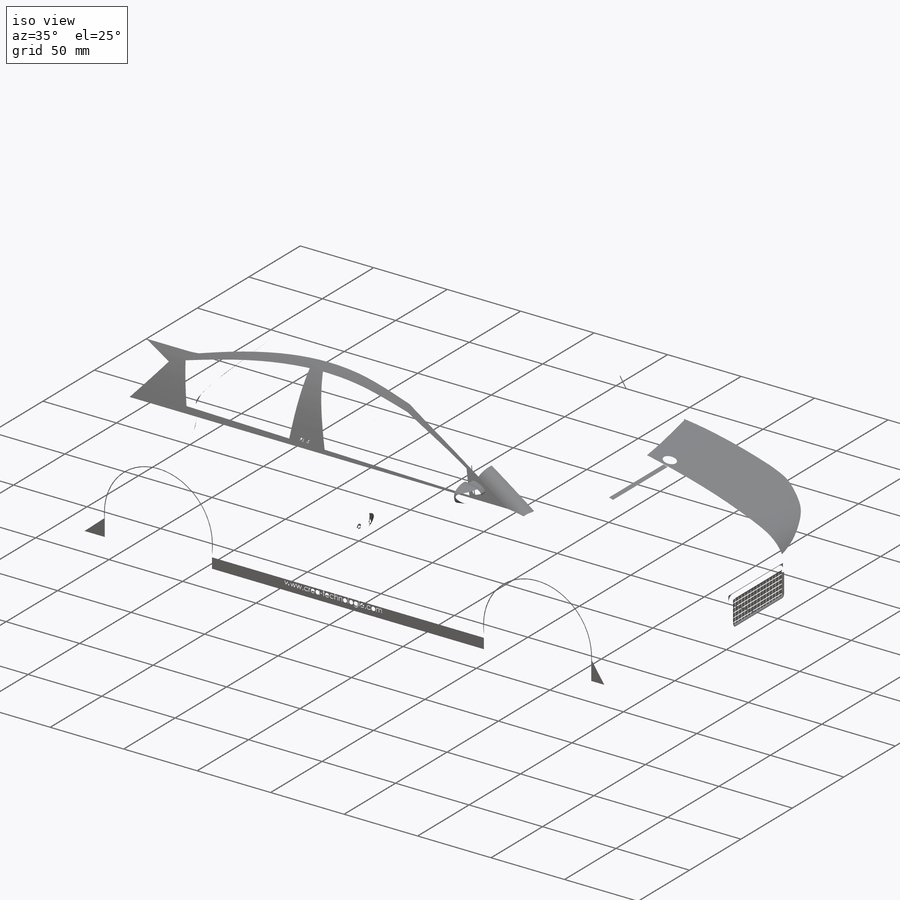
[diagram: iso view]
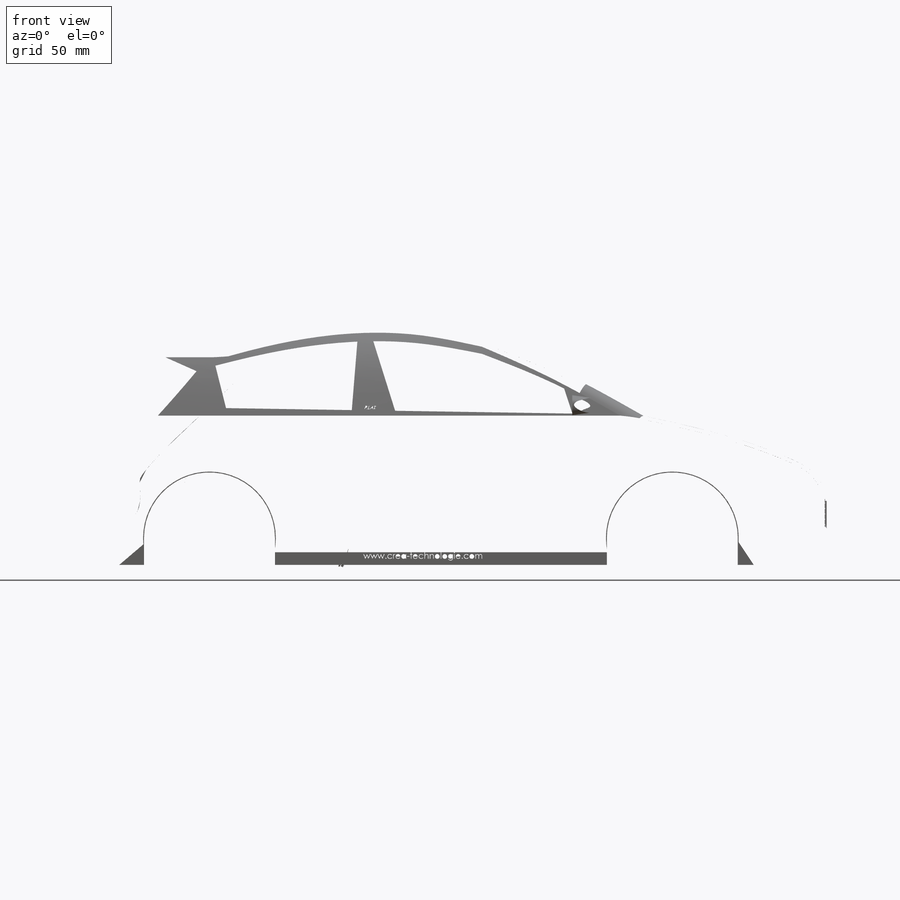
[diagram: front view]
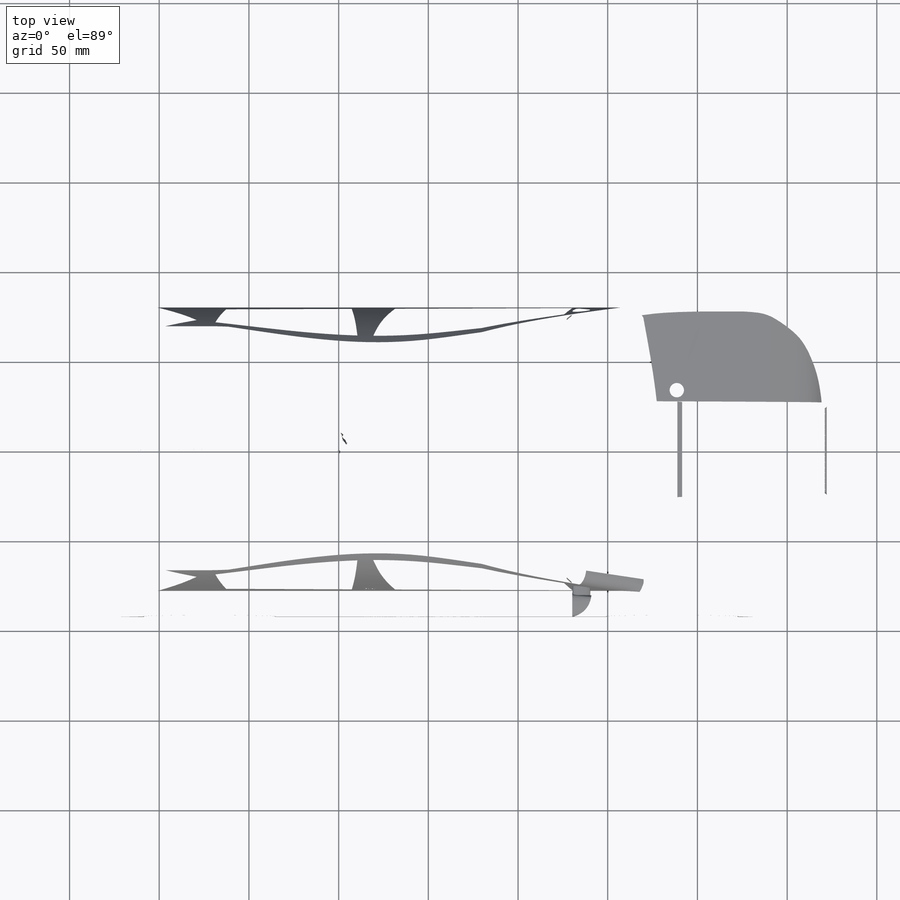
[diagram: top view]
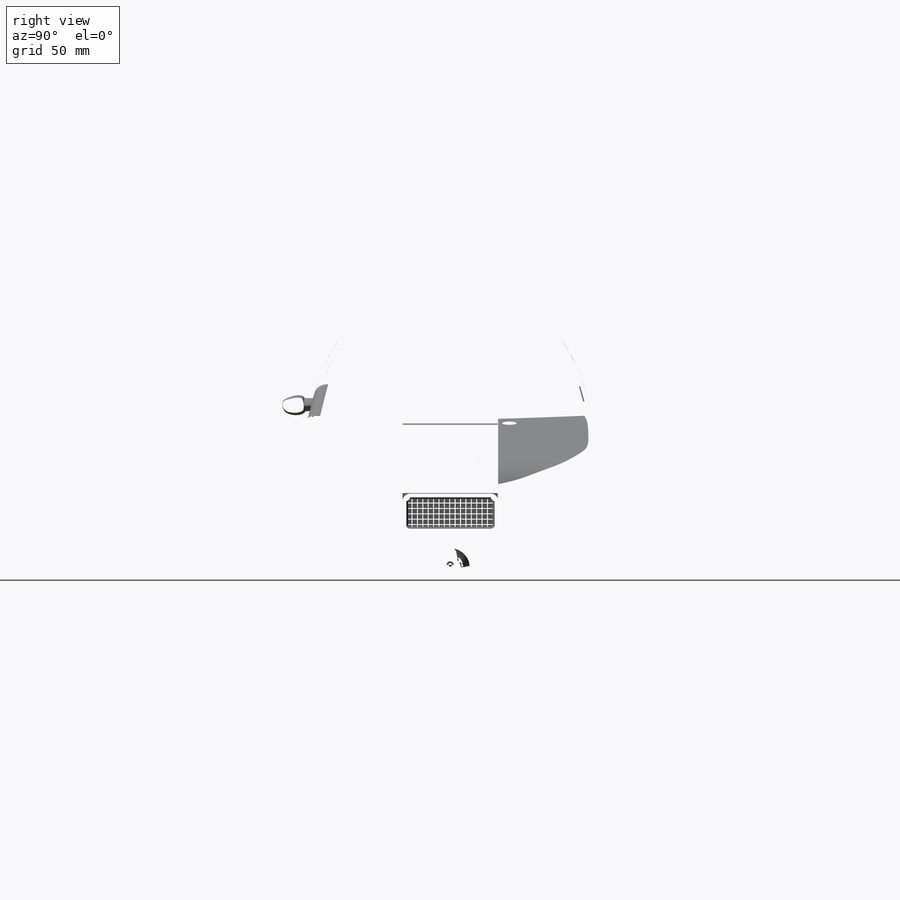
[diagram: right view]
SOLIDWORKS PART (.sldprt)
format: sldprt  version: not decoded by parser v0  size: 6,129,152 bytes
history: native  units: mm
features: sketch x47, fillet x27, extrude x21, cut_extrude x20, plane x12, mirror x5, pattern_linear x2, material x1, shell x1 + 1 further entry (+9 scaffold rows collapsed)
feature tree (146):
  scaffold x9  (default folders/planes/origin — collapsed)
  material  "ABS"
  "Corps de surface"
  plane  "Plane1"
  plane  "Plane2"
  plane  "Plane3"
  sketch  "Esquisse1"  dims[c1.D3=68.0mm c1.D4=68.0mm c1.D5=10.0mm c1.D1=180.0mm c1.D2=18.0mm c1.D6=125.0mm c1.D7=80.0mm c2.D6=8.0mm c2.D7=255.0mm c2.D1=420.0mm c2.D2=330.0mm c2.D3=125.0mm c2.D4=255.0mm]
  extrude  "Base-Extrusion"  Depth=170mm
  sketch  "Esquisse2"  dims[D1=270.75mm D2=83.0mm D3=224.0mm D4=224.0mm]
  cut_extrude  "Enlèv. mat.-Extru.2"  Depth=170mm
  sketch  "Esquisse5"
  cut_extrude  "Enlèv. mat.-Extru.4"  Depth=660mm
  sketch  "Esquisse6"  dims[D4=65.0mm D5=65.0mm D6=90.0mm D7=90.0mm D1=15.0mm D2=85.0mm D3=258.0mm]
  extrude  "Boss.-Extru.3"  Depth=184mm
  fillet  "Congé1"  Radius=8mm
  sketch  "Esquisse8"  dims[c1.D4=65.0mm c1.D5=65.0mm c1.D6=100.0mm c1.D7=100.0mm c1.D1=65.0mm c1.D2=65.0mm c2.D1=70.0mm c2.D2=70.0mm c3.D1=15.0mm c3.D2=90.0mm c3.D3=260.0mm c4.D2=32.0mm c4.D4=85.0mm]
  plane  "Plan1"  Offset=270mm
  sketch  "Esquisse11"  dims[D3=8.0mm D4=8.0mm D7=3.0mm D1=33.0mm D2=33.0mm D5=255.0mm D6=66.5mm D8=55.5mm]
  fillet  "Congé6"  Radius=4mm
  sketch  "Esquisse18"
  extrude  "Extrusion5"  Depth=10mm
  fillet  "Congé8"  Radius=1mm
  sketch  "Esquisse19"  dims[D1=50.0mm D2=50.0mm]
  extrude  "Extrusion6"  Depth=20mm
  fillet  "Congé9"  Radius=8mm
  sketch  "Esquisse20"  dims[D1=2.0mm]
  fillet  "Congé10"  Radius=1mm
  fillet  "Congé11"  Radius=20mm
  sketch  "Esquisse21"  dims[D1=1.0mm]
  cut_extrude  "Enlèv. mat.-Extru.7"  Depth=53mm
  fillet  "Congé14"  Radius=0.25mm
  sketch  "Esquisse22"
  extrude  "Extrusion7"  Depth=63mm
  plane  "Plan2"  Offset=180mm
  sketch  "Esquisse24"
  cut_extrude  "Enlèv. mat.-Extru.9"  Depth=40mm
  fillet  "Congé18"  Radius=1mm
  fillet  "Congé19"  Radius=1mm
  plane  "Plan3"  Offset=95mm
  sketch  "Esquisse25"  dims[D1=20.0mm D2=20.0mm]
  extrude  "Extrusion8"  Depth=38mm
  fillet  "Congé20"  Radius=1mm
  fillet  "Congé21"  Radius=1mm
  plane  "Plan4"  Offset=285mm
  sketch  "Esquisse26"
  cut_extrude  "Enlèv. mat.-Extru.10"  Depth=23mm
  fillet  "Congé22"  Radius=0.5mm
  plane  "Plan5"  Offset=50mm
  plane  "Plan6"  Offset=120mm
  sketch  "Esquisse31"  dims[D1=8.0mm]
  cut_extrude  "Enlèv. mat.-Extru.15"  Depth=68mm
  mirror  "Symétrie1"
  sketch  "Esquisse32"
  extrude  "Extrusion11"  Depth=138mm
  sketch  "Esquisse33"  dims[D1=0.0mm]
  extrude  "Extrusion12"  Depth=75mm
  sketch  "Esquisse34"
  cut_extrude  "Enlèv. mat.-Extru.16"  Depth=105mm
  mirror  "Symétrie3"
  fillet  "Congé25"  Radius=0.25mm
  fillet  "Congé26"  Radius=0.25mm
  fillet  "Congé27"  Radius=8mm
  fillet  "Congé30"  Radius=0.5mm
  shell  "Coque3"  Thickness=2mm
  cut_extrude  "Enlèv. mat.-Extru.17"  Depth=150mm
  cut_extrude  "Enlèv. mat.-Extru.18"  Depth=280mm
  cut_extrude  "Enlèv. mat.-Extru.19"  Depth=1.5mm
  fillet  "Congé31"  Radius=1mm
  sketch  "Esquisse35"
  extrude  "Extrusion13"  Depth=2mm
  fillet  "Congé32"  Radius=4mm
  fillet  "Congé33"  Radius=1mm
  sketch  "Esquisse36"  dims[D1=2.0mm]
  cut_extrude  "Enlèv. mat.-Extru.20"  Depth=1mm
  fillet  "Congé34"  Radius=1mm
  fillet  "Congé35"  Radius=1mm
  fillet  "Congé36"  Radius=0.5mm
  sketch  "Esquisse37"
  extrude  "Extrusion14"  Depth=0.1mm
  sketch  "Esquisse38"
  extrude  "Extrusion15"  Depth=0.1mm
  fillet  "Congé37"  Radius=1mm
  fillet  "Congé38"  Radius=8mm
  sketch  "Esquisse39"  dims[D1=10.0mm D2=6.0mm D3=~51.751665mm]
  extrude  "Extrusion16"  Depth=2mm
  fillet  "Congé39"  Radius=1mm
  plane  "Plan7"  Offset=90mm
  sketch  "Esquisse40"
  extrude  "Extrusion17"  [1 undecoded]
  sketch  "Esquisse41"  dims[D1=0.1mm]
  cut_extrude  "Enlèv. mat.-Extru.21"  Depth=72mm
  sketch  "Esquisse42"
  extrude  "Extrusion19"  [1 undecoded]
  plane  "Plan9"  Offset=130mm
  sketch  "Esquisse46"
  extrude  "Extrusion21"  Depth=12mm
  sketch  "Esquisse47"  dims[D1=0.5mm]
  cut_extrude  "Enlèv. mat.-Extru.23"  Depth=0.5mm
  plane  "Plan10"  Offset=84mm
  sketch  "Esquisse48"
  cut_extrude  "Enlèv. mat.-Extru.24"  Depth=10.5mm
  mirror  "Symétrie4"
  mirror  "Symétrie5"
  mirror  "Symétrie6"
  sketch  "Esquisse49"  dims[D1=0.5mm]
  cut_extrude  "Enlèv. mat.-Extru.25"  [1 undecoded]
  sketch  "Esquisse50"  dims[D1=0.5mm]
  cut_extrude  "Enlèv. mat.-Extru.26"  [1 undecoded]
  fillet  "Congé45"  Radius=0.2mm
  sketch  "Esquisse51"  dims[D1=0.5mm D2=2.0mm]
  extrude  "Extrusion22"  Depth=0.2mm
  pattern_linear  "Répétition linéaire1"  Count1=15 Count2=1 Spacing1=3mm Spacing2=50mm
  sketch  "Esquisse52"  dims[D1=0.5mm D2=2.0mm]
  extrude  "Extrusion23"  Depth=0.2mm
  pattern_linear  "Répétition linéaire2"  Count1=5 Count2=1 Spacing1=3mm Spacing2=50mm
  sketch  "Esquisse54"
  extrude  "Extrusion24"  Depth=0.1mm
  sketch  "Esquisse55"
  extrude  "Extrusion25"  Depth=0.1mm
  sketch  "Esquisse56"
  cut_extrude  "Enlèv. mat.-Extru.27"  Depth=150mm
  sketch  "Esquisse3D1"
  sketch  "Esquisse3D3"
  sketch  "Esquisse3D8"
  sketch  "Esquisse3D9"
  sketch  "Esquisse3D10"
  sketch  "Esquisse3D12"  dims[D1=2.0mm]
  sketch  "Esquisse58"  dims[D1=0.0mm]
  cut_extrude  "Enlèv. mat.-Extru.28"  [1 undecoded]
  sketch  "Esquisse59"  dims[D1=1.0mm D2=1.0mm]
  cut_extrude  "Enlèv. mat.-Extru.29"  Depth=210mm
  fillet  "Congé46"  Radius=0.5mm
  sketch  "Esquisse60"  dims[D1=0.0mm]
  extrude  "Extrusion26"  [1 undecoded]
  sketch  "Esquisse61"  dims[D1=0.0mm]
  cut_extrude  "Enlèv. mat.-Extru.30"  Depth=10mm
  sketch  "Esquisse62"
  extrude  "Extrusion27"  Depth=0.1mm
decode coverage: 89 of 123 modeling features carry decoded parameters; 1 rows unclassified (native names shown)
note: ~ marks probable driven/reference dimensions
note: 6 parameter values undecoded
summary: no parameter record found for 6 features
note: suppression state not decoded; provenance and decode notes live in map.json
